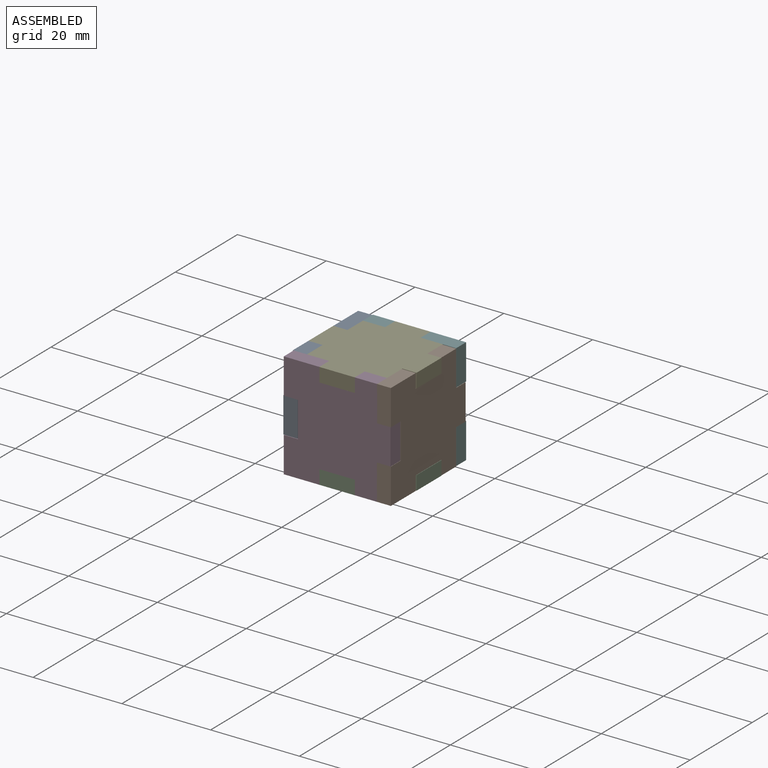
[diagram: assembled view]
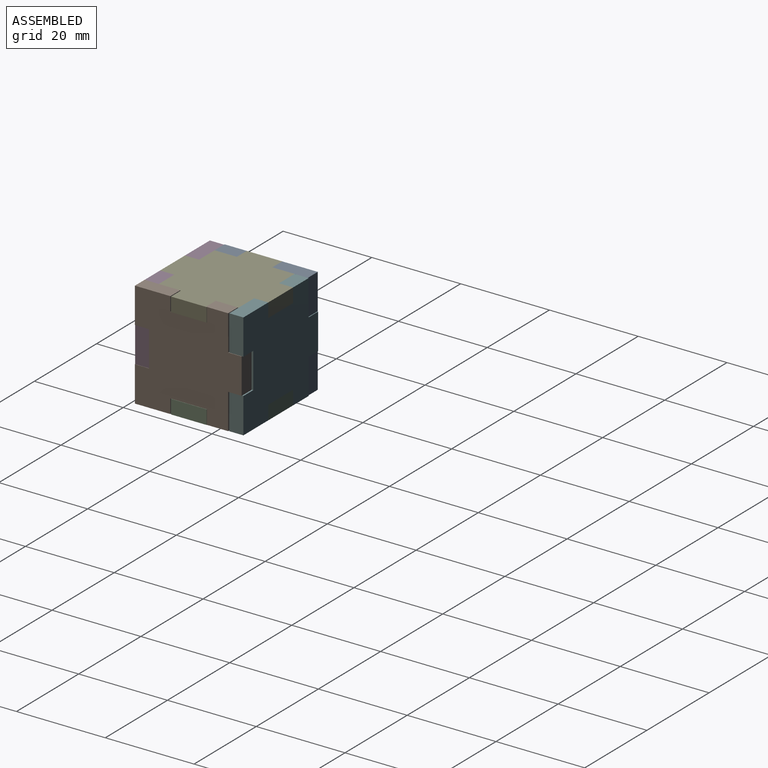
[diagram: assembled view, second angle]
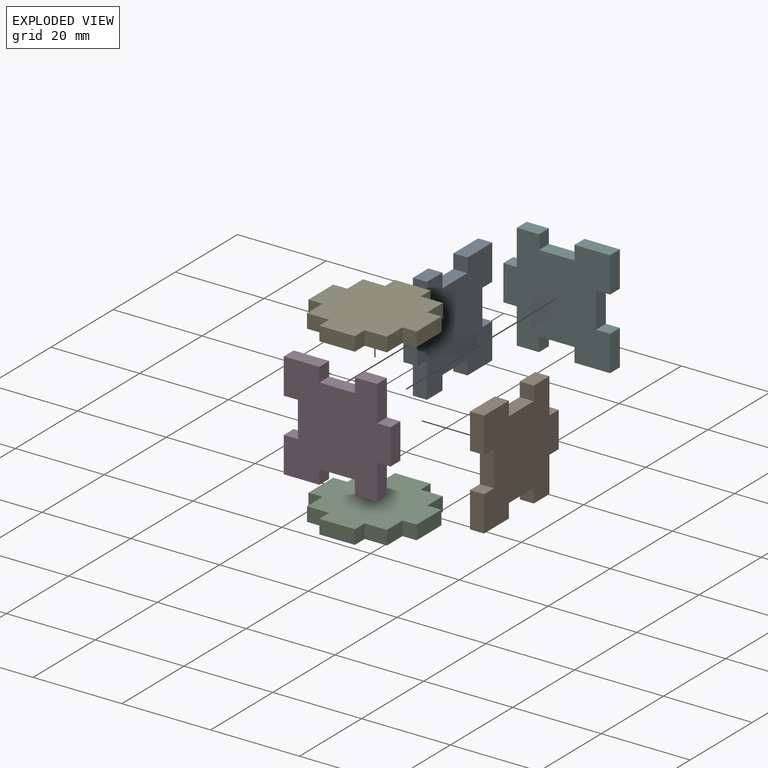
[diagram: exploded view]
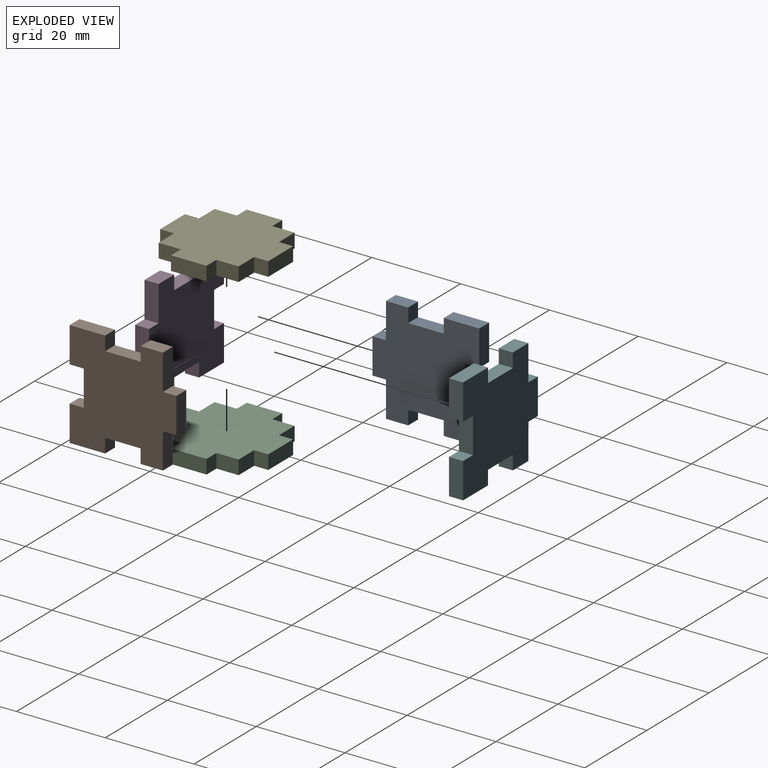
[diagram: exploded view, second angle]
ASSEMBLY  parts=6 mates=5
PART A: 23 faces, bbox 24x3.2x24 mm
  f0: plane 8x3.18mm, normal (0,0,1), area 25.4mm2, adj f1,f20,f21,f22
  f1: plane 5x3.18mm, normal (-1,0,0), area 15.9mm2, adj f0,f2,f21,f22
  f2: plane 3.18x3.18mm, normal (0,0,-1), area 10.1mm2, adj f1,f3,f21,f22
  f3: plane 8x3.18mm, normal (-1,0,0), area 25.4mm2, adj f2,f4,f21,f22
  f4: plane 3.18x3.18mm, normal (0,0,1), area 10.1mm2, adj f3,f5,f21,f22
  f5: plane 8x3.18mm, normal (-1,0,0), area 25.4mm2, adj f4,f6,f21,f22
  f6: plane 8x3.18mm, normal (0,0,-1), area 25.4mm2, adj f5,f7,f21,f22
  f7: plane 3.18x3.18mm, normal (1,0,0), area 10.1mm2, adj f6,f8,f21,f22
  f8: plane 8x3.18mm, normal (0,0,-1), area 25.4mm2, adj f7,f9,f21,f22
  f9: plane 3.18x3.18mm, normal (-1,0,0), area 10.1mm2, adj f8,f10,f21,f22
  f10: plane 8x3.18mm, normal (0,0,-1), area 25.4mm2, adj f9,f11,f21,f22
  f11: plane 8x3.18mm, normal (1,0,0), area 25.4mm2, adj f10,f12,f21,f22
  f12: plane 3.18x3.18mm, normal (0,0,1), area 10.1mm2, adj f11,f13,f21,f22
  f13: plane 8x3.18mm, normal (1,0,0), area 25.4mm2, adj f12,f14,f21,f22
  f14: plane 3.18x3.18mm, normal (0,0,-1), area 10.1mm2, adj f13,f15,f21,f22
  f15: plane 5x3.18mm, normal (1,0,0), area 15.9mm2, adj f14,f16,f21,f22
  f16: plane 8x3.18mm, normal (0,0,1), area 25.4mm2, adj f15,f17,f21,f22
  f17: plane 3.18x3.04mm, normal (1,0,0), area 9.6mm2, adj f16,f18,f21,f22
  f18: plane 8x3.18mm, normal (0,0,1), area 25.4mm2, adj f17,f19,f21,f22
  f19: plane 3.18x0mm, normal (1,0,0.01), area 0mm2, adj f18,f20
  f20: plane 3.18x3.03mm, normal (-1,0,0), area 9.6mm2, adj f0,f19,f21,f22
  f21: plane 24.04x24mm, normal (0,-1,0), area 452.4mm2, adj f0,f1,f2,f3,f4,f5,f6,f7
  f22: plane 24.04x24mm, normal (0,1,0), area 452.4mm2, adj f0,f1,f2,f3,f4,f5,f6,f7
PART B: same geometry as A
PART C: 22 faces, bbox 24.4x24.4x3.2 mm
  f0: plane 8x3.18mm, normal (0,1,0), area 25.4mm2, adj f1,f19,f20,f21
  f1: plane 3.18x3.18mm, normal (-1,0,0), area 10.1mm2, adj f0,f2,f20,f21
  f2: plane 5x3.18mm, normal (0,1,0), area 15.9mm2, adj f1,f3,f20,f21
  f3: plane 5x3.18mm, normal (-1,0,0), area 15.9mm2, adj f2,f4,f20,f21
  f4: plane 3.18x3.18mm, normal (0,1,0), area 10.1mm2, adj f3,f5,f20,f21
  f5: plane 8x3.18mm, normal (-1,0,0), area 25.4mm2, adj f4,f6,f20,f21
  f6: plane 3.18x3.18mm, normal (0,-1,0), area 10.1mm2, adj f5,f7,f20,f21
  f7: plane 5x3.18mm, normal (-1,0,0), area 15.9mm2, adj f6,f8,f20,f21
  f8: plane 5x3.18mm, normal (0,-1,0), area 15.9mm2, adj f7,f9,f20,f21
  f9: plane 3.18x3.18mm, normal (-1,0,0), area 10.1mm2, adj f8,f10,f20,f21
  f10: plane 8x3.18mm, normal (0,-1,0), area 25.4mm2, adj f9,f11,f20,f21
  f11: plane 3.18x3.18mm, normal (1,0,0), area 10.1mm2, adj f10,f12,f20,f21
  f12: plane 5x3.18mm, normal (0,-1,0), area 15.9mm2, adj f11,f13,f20,f21
  f13: plane 5x3.18mm, normal (1,0,0), area 15.9mm2, adj f12,f14,f20,f21
  f14: plane 3.18x3.18mm, normal (0,-1,0), area 10.1mm2, adj f13,f15,f20,f21
  f15: plane 8x3.18mm, normal (1,0,0), area 25.4mm2, adj f14,f16,f20,f21
  f16: plane 3.18x3.18mm, normal (0,1,0), area 10.1mm2, adj f15,f17,f20,f21
  f17: plane 5x3.18mm, normal (1,0,0), area 15.9mm2, adj f16,f18,f20,f21
  f18: plane 5x3.18mm, normal (0,1,0), area 15.9mm2, adj f17,f19,f20,f21
  f19: plane 3.18x3.18mm, normal (1,0,0), area 10.1mm2, adj f0,f18,f20,f21
  f20: plane 24.36x24.36mm, normal (0,0,1), area 425.9mm2, adj f0,f1,f2,f3,f4,f5,f6,f7
  f21: plane 24.36x24.36mm, normal (0,0,-1), area 425.9mm2, adj f0,f1,f2,f3,f4,f5,f6,f7
PART D: same geometry as A
PART E: same geometry as C
PART F: same geometry as A
PLACE A rot(axis=(0.58,0.58,-0.58),120deg) t=(-37.68,30.49,79.51)mm
PLACE B rot(axis=(-0.58,0.58,0.58),120deg) t=(-19.74,-60.16,79.51)mm
PLACE C t=(-16.49,-42.74,44.39)mm
PLACE D rot(axis=(0,1,0),90deg) t=(-73.91,-23.75,79.51)mm
PLACE E rot(axis=(0,1,0),0deg) t=(-16.49,-42.74,65.21)mm
PLACE F rot(axis=(0,-1,0),90deg) t=(16.57,-2.57,33.26)mm
MATE parallel D.f14 <-> C.f11  axis (-1,0,0) through (-24.67,-25.34,45.97)mm
MATE parallel F.f12 <-> E.f19  axis (-1,0,0) through (-24.67,-4.16,66.8)mm
MATE parallel A.f2 <-> E.f6  axis (0,1,0) through (-39.26,-18.75,66.8)mm
MATE parallel B.f9 <-> D.f17  axis (0,0,1) through (-18.15,-25.34,52.39)mm
MATE parallel E.f11 <-> D.f2  axis (1,0,0) through (-24.67,-25.34,66.8)mm
